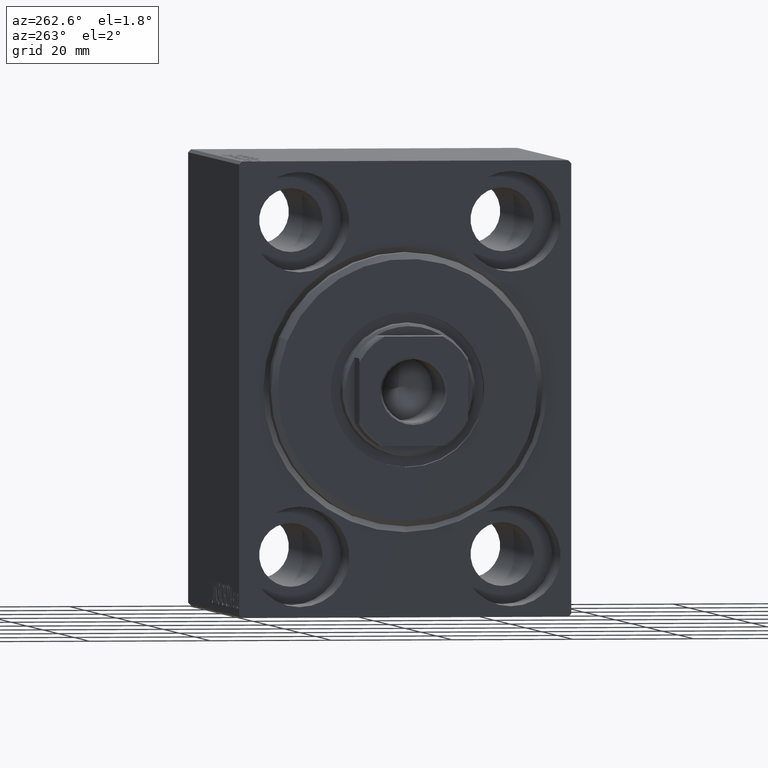
[diagram: clean part render]
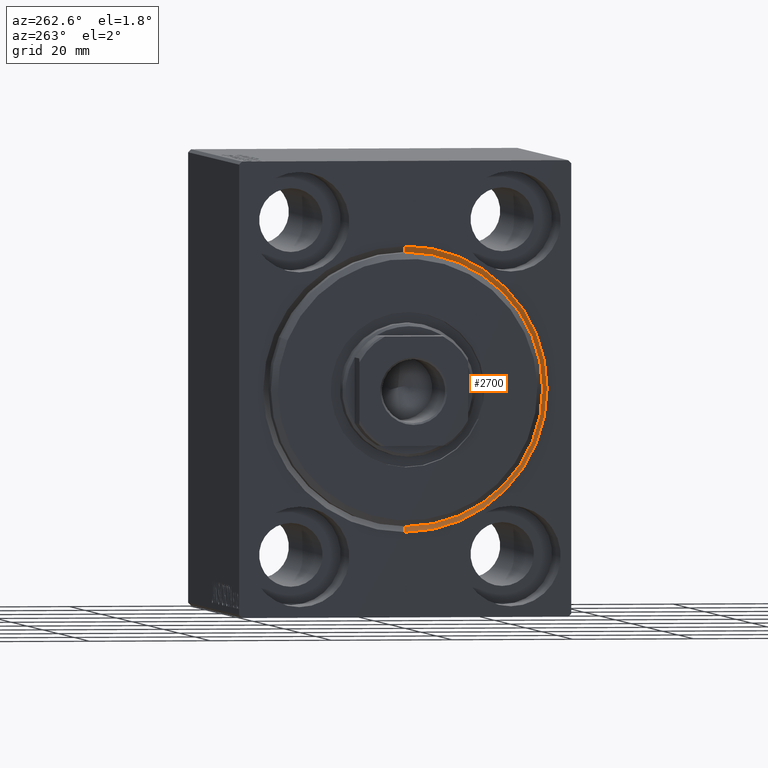
[diagram: same view with one face highlighted and labeled with its STEP entity id]
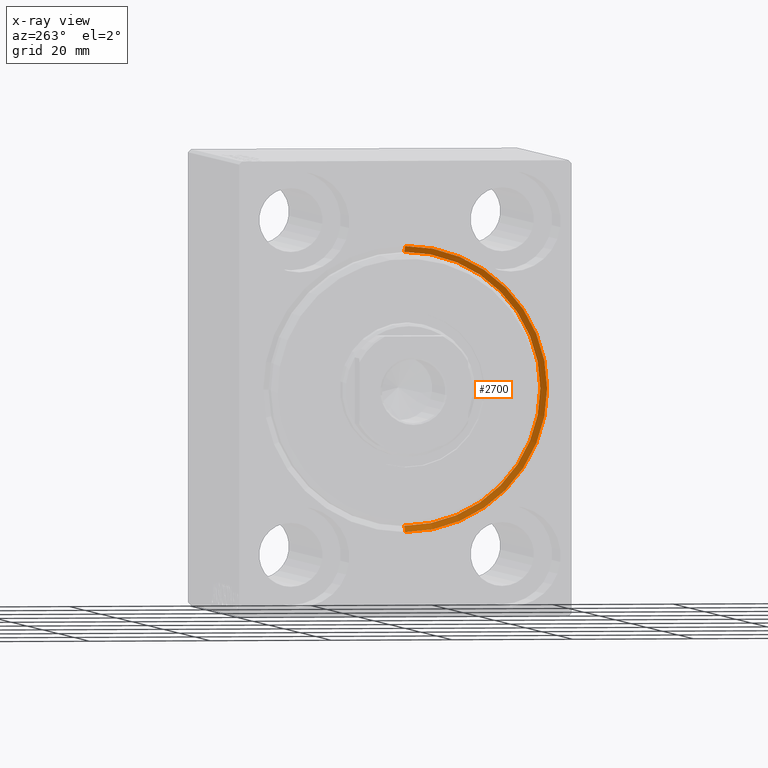
[diagram: x-ray of the same camera — body ghosted, the highlighted face saturated]
A machine part, auxiliary view. The second image highlights one B-rep face of the part: STEP entity #2700.
The next image is the same camera in x-ray: the body ghosted, the highlighted face saturated — about 0% of this face is hidden behind the body in this view.
In plain terms, the highlighted conical surface has half-angle 45 deg.
Its self-contained STEP definition (entity closure, byte-faithful):
#298 = CARTESIAN_POINT ( 'NONE',  ( 1.000000000000014655, 2.755455298081545172E-15, -22.50000000000000355 ) ) ;
#596 = DIRECTION ( 'NONE',  ( -0.7071067811865474617, 8.659560562354932858E-17, -0.7071067811865474617 ) ) ;
#1371 = DIRECTION ( 'NONE',  ( 0.000000000000000000, 0.000000000000000000, 1.000000000000000000 ) ) ;
#2700 = ADVANCED_FACE ( 'NONE', ( #34445 ), #35613, .F. ) ;
#3122 = CARTESIAN_POINT ( 'NONE',  ( 1.000000000000014655, 0.000000000000000000, 0.000000000000000000 ) ) ;
#3251 = LINE ( 'NONE', #40701, #5474 ) ;
#4251 = ORIENTED_EDGE ( 'NONE', *, *, #8781, .T. ) ;
#5320 = ORIENTED_EDGE ( 'NONE', *, *, #21229, .F. ) ;
#5474 = VECTOR ( 'NONE', #596, 1000.000000000000114 ) ;
#5851 = DIRECTION ( 'NONE',  ( 0.000000000000000000, 0.000000000000000000, -1.000000000000000000 ) ) ;
#8467 = EDGE_CURVE ( 'NONE', #25460, #43336, #40684, .T. ) ;
#8781 = EDGE_CURVE ( 'NONE', #25460, #32308, #3251, .T. ) ;
#9191 = CIRCLE ( 'NONE', #39437, 23.50000000000001776 ) ;
#10313 = CARTESIAN_POINT ( 'NONE',  ( 1.000000000000014655, 0.000000000000000000, 22.50000000000000355 ) ) ;
#12313 = DIRECTION ( 'NONE',  ( -0.7071067811865474617, 0.000000000000000000, 0.7071067811865474617 ) ) ;
#13081 = VERTEX_POINT ( 'NONE', #16172 ) ;
#16172 = CARTESIAN_POINT ( 'NONE',  ( 0.000000000000000000, 0.000000000000000000, 23.50000000000001776 ) ) ;
#16559 = ORIENTED_EDGE ( 'NONE', *, *, #8467, .F. ) ;
#20926 = CARTESIAN_POINT ( 'NONE',  ( 0.000000000000000000, 2.877919977996282293E-15, -23.50000000000001776 ) ) ;
#21168 = EDGE_LOOP ( 'NONE', ( #16559, #4251, #5320, #36041 ) ) ;
#21229 = EDGE_CURVE ( 'NONE', #13081, #32308, #9191, .T. ) ;
#23187 = DIRECTION ( 'NONE',  ( -1.000000000000000000, 0.000000000000000000, 0.000000000000000000 ) ) ;
#25460 = VERTEX_POINT ( 'NONE', #298 ) ;
#25685 = CARTESIAN_POINT ( 'NONE',  ( 0.000000000000000000, 0.000000000000000000, 0.000000000000000000 ) ) ;
#25834 = EDGE_CURVE ( 'NONE', #43336, #13081, #42497, .T. ) ;
#27407 = CARTESIAN_POINT ( 'NONE',  ( 1.000000000000014655, 0.000000000000000000, 0.000000000000000000 ) ) ;
#28270 = DIRECTION ( 'NONE',  ( -1.000000000000000000, 0.000000000000000000, 0.000000000000000000 ) ) ;
#28426 = CARTESIAN_POINT ( 'NONE',  ( 1.000000000000014655, 0.000000000000000000, 22.50000000000000355 ) ) ;
#29049 = VECTOR ( 'NONE', #12313, 1000.000000000000114 ) ;
#30833 = AXIS2_PLACEMENT_3D ( 'NONE', #3122, #23187, #33972 ) ;
#32308 = VERTEX_POINT ( 'NONE', #20926 ) ;
#33972 = DIRECTION ( 'NONE',  ( 0.000000000000000000, 0.000000000000000000, -1.000000000000000000 ) ) ;
#34445 = FACE_OUTER_BOUND ( 'NONE', #21168, .T. ) ;
#35613 = CONICAL_SURFACE ( 'NONE', #38445, 22.50000000000000355, 0.7853981633974482790 ) ;
#35812 = DIRECTION ( 'NONE',  ( 1.000000000000000000, 0.000000000000000000, 0.000000000000000000 ) ) ;
#36041 = ORIENTED_EDGE ( 'NONE', *, *, #25834, .F. ) ;
#38445 = AXIS2_PLACEMENT_3D ( 'NONE', #27407, #28270, #1371 ) ;
#39437 = AXIS2_PLACEMENT_3D ( 'NONE', #25685, #35812, #5851 ) ;
#40684 = CIRCLE ( 'NONE', #30833, 22.50000000000000355 ) ;
#40701 = CARTESIAN_POINT ( 'NONE',  ( 1.000000000000014655, 2.755455298081545172E-15, -22.50000000000000355 ) ) ;
#42497 = LINE ( 'NONE', #28426, #29049 ) ;
#43336 = VERTEX_POINT ( 'NONE', #10313 ) ;